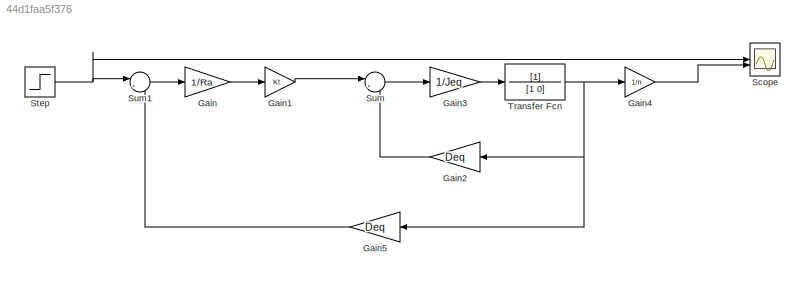
MODEL slx_44d1faa5f376
KIND model
CONFIG AbsTol = auto
CONFIG EnableMultiTasking = off
CONFIG FixedStep = auto
CONFIG MaxStep = auto
CONFIG MinStep = auto
CONFIG RelTol = 1e-3
CONFIG SampleTimeConstraint = Unconstrained
CONFIG SolverName = VariableStepAuto
CONFIG StartTime = 0.0
CONFIG StopTime = 100
BLOCK [Gain] Gain
  Gain = 1/Ra
BLOCK [Gain] Gain1
  Gain = Kt
BLOCK [Gain] Gain2
  Gain = Deq
  NameLocation = top
BLOCK [Gain] Gain3
  Gain = 1/Jeq
BLOCK [Gain] Gain4
  Gain = 1/n
BLOCK [Gain] Gain5
  Gain = Deq
  NameLocation = top
BLOCK [Scope] Scope
  Floating = off
  NumInputPorts = 2
  ScopeSpecificationString = Simulink.scopes.TimeScopeBlockCfg('CurrentConfiguration', extmgr.ConfigurationSet(extmgr.Configuration('Core','General UI',true),extmgr.Configuration('Core','Source UI',true),extmgr.Configuration('Sources','WiredSimulink',true),extmgr.Configuration('Visuals','Time Domain',true,'SerializedDisplays',{struct('MinYLimReal','-1.04846','MaxYLimReal','9.43611','YLabelReal','','MinYLimMag','0.00000','MaxY...<+1450ch>
BLOCK [Step] Step
  After = 5
  SampleTime = 0
BLOCK [Sum] Sum
  Inputs = |+-
BLOCK [Sum] Sum1
  Inputs = |+-
BLOCK [TransferFcn] Transfer Fcn
  Denominator = [1 0]
LINE Gain1:1 -> Sum:1
LINE Gain2:1 -> Sum:2
LINE Gain3:1 -> Transfer Fcn:1
LINE Gain4:1 -> Scope:2
LINE Gain5:1 -> Sum1:2
LINE Gain:1 -> Gain1:1
NET Step:1 -> Scope:1, Sum1:1
LINE Sum1:1 -> Gain:1
LINE Sum:1 -> Gain3:1
NET Transfer Fcn:1 -> Gain2:1, Gain4:1, Gain5:1
note: NET lines group one-source signal fan-out (src -> all destinations, sorted); 1:1 wires keep LINE
